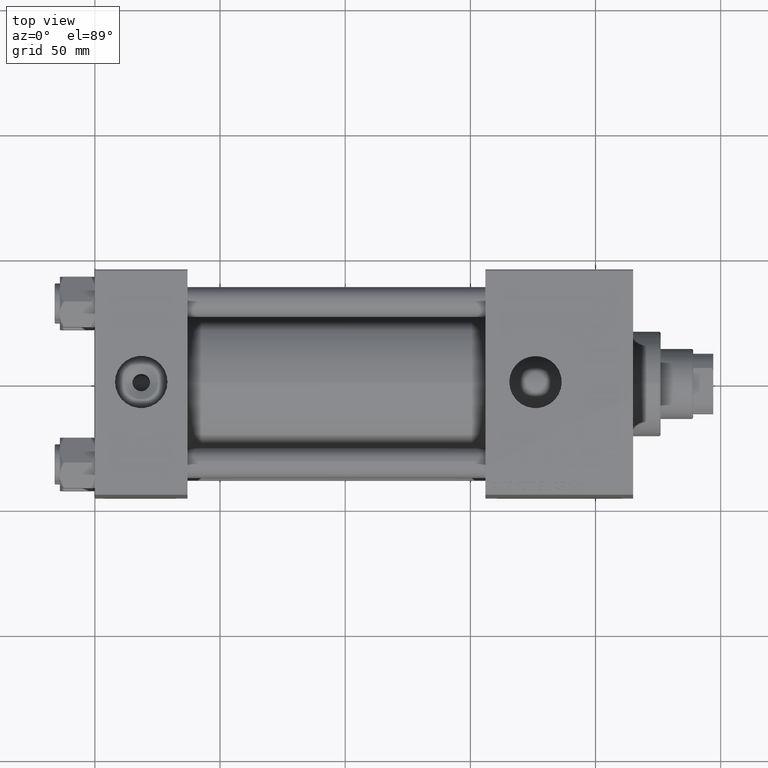
[diagram: clean part render]
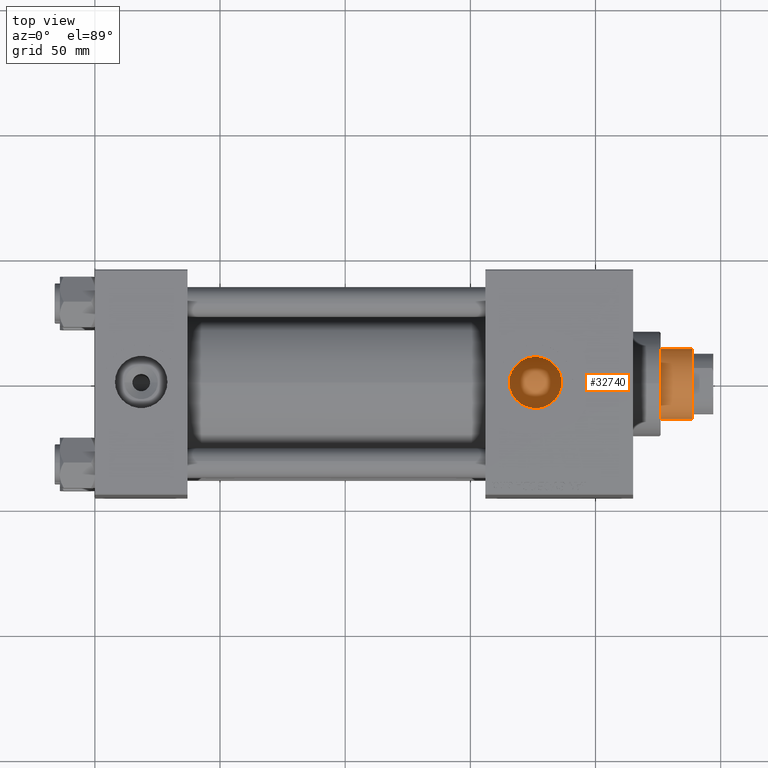
[diagram: same view with one face highlighted and labeled with its STEP entity id]
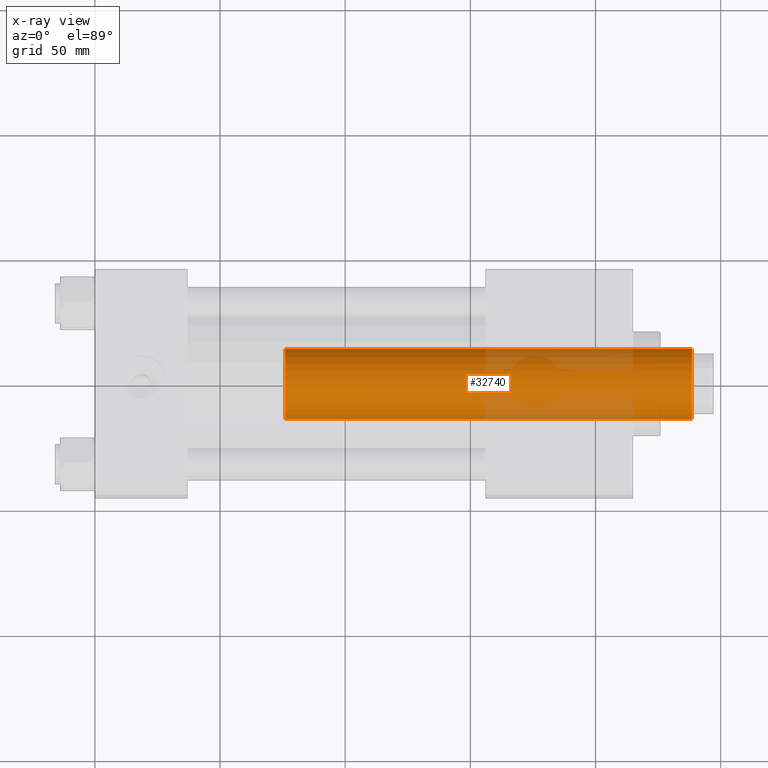
[diagram: x-ray of the same camera — body ghosted, the highlighted face saturated]
A machine part, top view. The second image highlights one B-rep face of the part: STEP entity #32740.
The next image is the same camera in x-ray: the body ghosted, the highlighted face saturated — about 20% of this face is hidden behind the body in this view.
In plain terms, the highlighted cylindrical surface (edge-blend (fillet) strip) has radius 14 mm, axis along (-1, 0, 0).
Its self-contained STEP definition (entity closure, byte-faithful):
#625 = VERTEX_POINT ( 'NONE', #9955 ) ;
#1370 = VERTEX_POINT ( 'NONE', #15438 ) ;
#1667 = DIRECTION ( 'NONE',  ( 1.000000000000000000, 0.000000000000000000, 0.000000000000000000 ) ) ;
#2824 = DIRECTION ( 'NONE',  ( -0.000000000000000000, -0.000000000000000000, -1.000000000000000000 ) ) ;
#2888 = FACE_OUTER_BOUND ( 'NONE', #22013, .T. ) ;
#3024 = ORIENTED_EDGE ( 'NONE', *, *, #47587, .T. ) ;
#5875 = CARTESIAN_POINT ( 'NONE',  ( 14.00000000000000178, 1.714505518806294835E-15, 202.0000000000000000 ) ) ;
#9040 = AXIS2_PLACEMENT_3D ( 'NONE', #44233, #36560, #1667 ) ;
#9955 = CARTESIAN_POINT ( 'NONE',  ( 14.00000000000000178, 1.714505518806294835E-15, 39.00000000000000000 ) ) ;
#14856 = CIRCLE ( 'NONE', #48977, 14.00000000000000178 ) ;
#15438 = CARTESIAN_POINT ( 'NONE',  ( -14.00000000000000178, 0.000000000000000000, 39.00000000000000000 ) ) ;
#15601 = VECTOR ( 'NONE', #27328, 1000.000000000000000 ) ;
#18832 = ORIENTED_EDGE ( 'NONE', *, *, #49537, .T. ) ;
#18946 = AXIS2_PLACEMENT_3D ( 'NONE', #22006, #30404, #45938 ) ;
#19958 = DIRECTION ( 'NONE',  ( 0.000000000000000000, 0.000000000000000000, 1.000000000000000000 ) ) ;
#22006 = CARTESIAN_POINT ( 'NONE',  ( 0.000000000000000000, 0.000000000000000000, 202.0000000000000000 ) ) ;
#22013 = EDGE_LOOP ( 'NONE', ( #40600, #3024, #39548, #18832 ) ) ;
#22089 = CIRCLE ( 'NONE', #9040, 14.00000000000000178 ) ;
#22185 = VECTOR ( 'NONE', #2824, 1000.000000000000000 ) ;
#24249 = DIRECTION ( 'NONE',  ( 1.000000000000000000, 0.000000000000000000, 0.000000000000000000 ) ) ;
#24696 = CARTESIAN_POINT ( 'NONE',  ( 14.00000000000000178, 1.714505518806294835E-15, 201.5000000000000284 ) ) ;
#26014 = LINE ( 'NONE', #5875, #22185 ) ;
#26589 = CYLINDRICAL_SURFACE ( 'NONE', #18946, 14.00000000000000178 ) ;
#27328 = DIRECTION ( 'NONE',  ( -0.000000000000000000, -0.000000000000000000, -1.000000000000000000 ) ) ;
#29555 = EDGE_CURVE ( 'NONE', #34191, #1370, #35433, .T. ) ;
#30404 = DIRECTION ( 'NONE',  ( -0.000000000000000000, -0.000000000000000000, -1.000000000000000000 ) ) ;
#31769 = EDGE_CURVE ( 'NONE', #37224, #625, #26014, .T. ) ;
#32740 = ADVANCED_FACE ( 'NONE', ( #2888 ), #26589, .T. ) ;
#33488 = CARTESIAN_POINT ( 'NONE',  ( -14.00000000000000178, 0.000000000000000000, 201.5000000000000284 ) ) ;
#34191 = VERTEX_POINT ( 'NONE', #33488 ) ;
#34922 = CARTESIAN_POINT ( 'NONE',  ( -14.00000000000000178, 0.000000000000000000, 202.0000000000000000 ) ) ;
#35433 = LINE ( 'NONE', #34922, #15601 ) ;
#36560 = DIRECTION ( 'NONE',  ( 0.000000000000000000, 0.000000000000000000, -1.000000000000000000 ) ) ;
#37224 = VERTEX_POINT ( 'NONE', #24696 ) ;
#39548 = ORIENTED_EDGE ( 'NONE', *, *, #29555, .T. ) ;
#40600 = ORIENTED_EDGE ( 'NONE', *, *, #31769, .F. ) ;
#43354 = CARTESIAN_POINT ( 'NONE',  ( 0.000000000000000000, 0.000000000000000000, 39.00000000000000000 ) ) ;
#44233 = CARTESIAN_POINT ( 'NONE',  ( 0.000000000000000000, 0.000000000000000000, 201.5000000000000284 ) ) ;
#45938 = DIRECTION ( 'NONE',  ( -1.000000000000000000, 0.000000000000000000, 0.000000000000000000 ) ) ;
#47587 = EDGE_CURVE ( 'NONE', #37224, #34191, #22089, .T. ) ;
#48977 = AXIS2_PLACEMENT_3D ( 'NONE', #43354, #19958, #24249 ) ;
#49537 = EDGE_CURVE ( 'NONE', #1370, #625, #14856, .T. ) ;